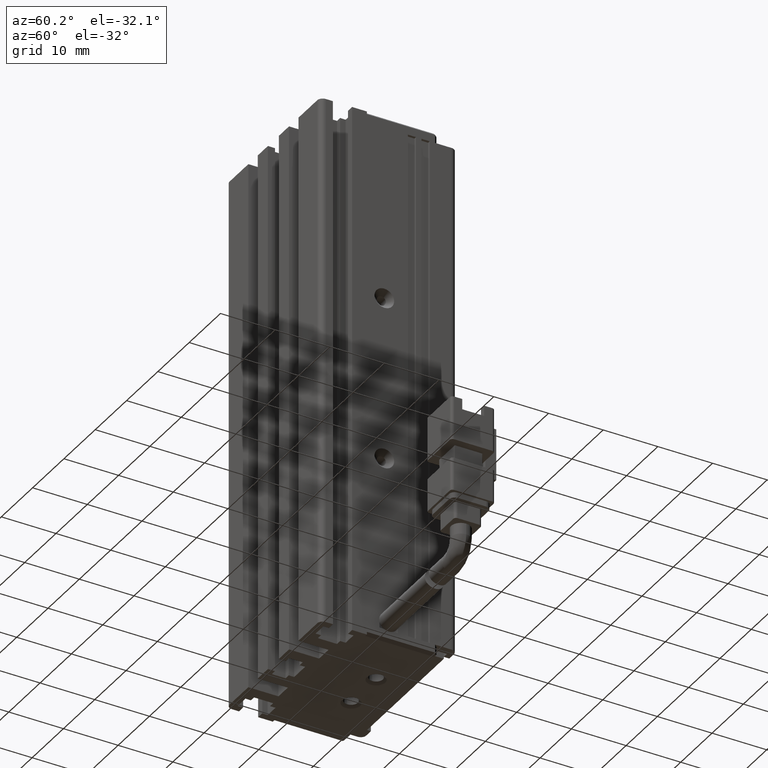
[diagram: clean part render]
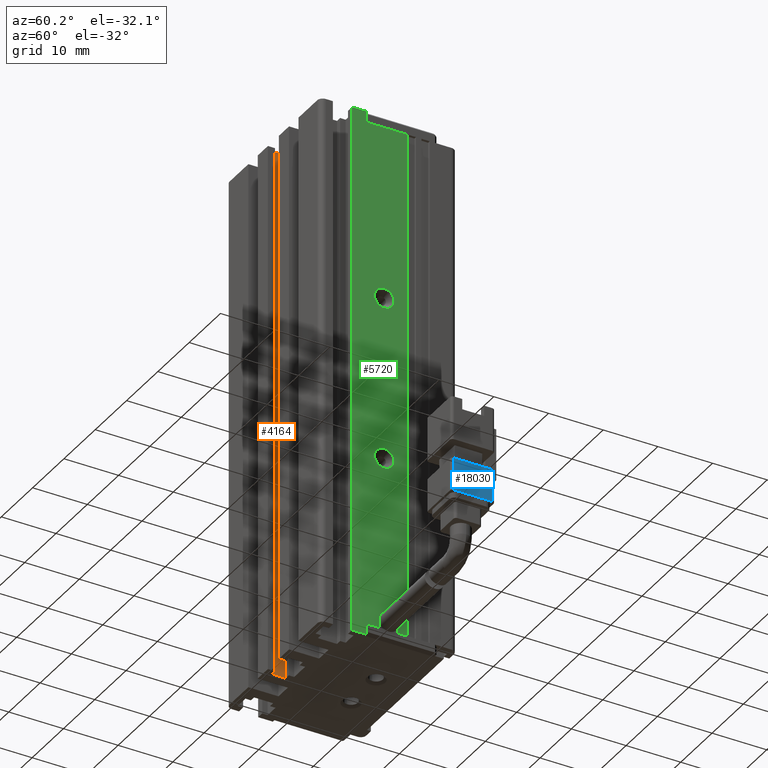
[diagram: same view with three faces highlighted in distinct colors, each labeled with its STEP entity id]
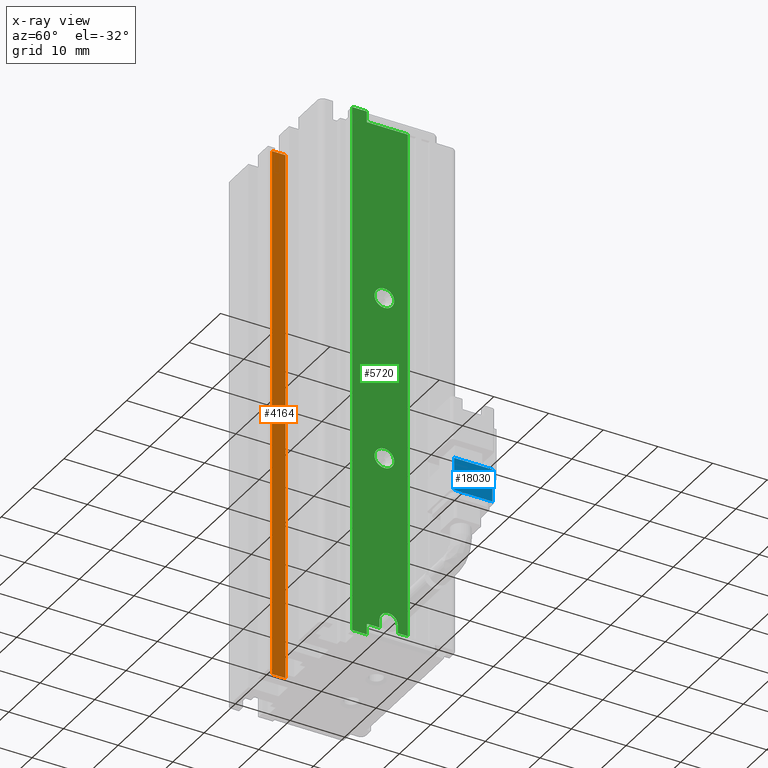
[diagram: x-ray of the same camera — body ghosted, the three highlighted faces saturated]
A machine part, auxiliary view with three faces highlighted in distinct colors.
The next image is the same camera in x-ray (body ghosted, the three faces saturated) — at least one of them is partly hidden behind the body in this view.
Their STEP definitions:

[orange] entity #4164 — the highlighted planar face has unit normal (-1, 0, 0).
#687 = DIRECTION ( 'NONE',  ( -1.000000000000000000, 0.0000000000000000000, 0.0000000000000000000 ) ) ;
#843 = CARTESIAN_POINT ( 'NONE',  ( 38.17537974683542500, 11.99594479660386700, -164.0000000000000000 ) ) ;
#1530 = DIRECTION ( 'NONE',  ( 0.0000000000000000000, 1.000000000000000000, -0.0000000000000000000 ) ) ;
#2877 = EDGE_CURVE ( 'NONE', #10913, #12309, #28975, .T. ) ;
#3447 = LINE ( 'NONE', #8508, #21119 ) ;
#4136 = VECTOR ( 'NONE', #27814, 1000.000000000000000 ) ;
#4164 = ADVANCED_FACE ( 'NONE', ( #13130 ), #5409, .F. ) ;
#4183 = ORIENTED_EDGE ( 'NONE', *, *, #6890, .F. ) ;
#5409 = PLANE ( 'NONE',  #10887 ) ;
#5917 = CARTESIAN_POINT ( 'NONE',  ( 38.17537974683542500, 7.083797468354437600, -164.0000000000000000 ) ) ;
#6098 = DIRECTION ( 'NONE',  ( 0.0000000000000000000, 0.0000000000000000000, 1.000000000000000000 ) ) ;
#6890 = EDGE_CURVE ( 'NONE', #20509, #10913, #12253, .T. ) ;
#8463 = EDGE_LOOP ( 'NONE', ( #25226, #4183, #27035, #19769 ) ) ;
#8508 = CARTESIAN_POINT ( 'NONE',  ( 38.17537974683542500, 11.99594479660386700, -66.00000000000000000 ) ) ;
#10887 = AXIS2_PLACEMENT_3D ( 'NONE', #15034, #687, #17471 ) ;
#10913 = VERTEX_POINT ( 'NONE', #12245 ) ;
#12245 = CARTESIAN_POINT ( 'NONE',  ( 38.17537974683542500, 14.49594479660386900, -66.00000000000000000 ) ) ;
#12253 = LINE ( 'NONE', #18314, #18694 ) ;
#12309 = VERTEX_POINT ( 'NONE', #14815 ) ;
#13130 = FACE_OUTER_BOUND ( 'NONE', #8463, .T. ) ;
#13301 = CARTESIAN_POINT ( 'NONE',  ( 38.17537974683542500, 14.49594479660386900, -66.00000000000000000 ) ) ;
#14815 = CARTESIAN_POINT ( 'NONE',  ( 38.17537974683542500, 14.49594479660386900, -164.0000000000000000 ) ) ;
#15034 = CARTESIAN_POINT ( 'NONE',  ( 38.17537974683542500, 7.083797468354437600, -66.00000000000000000 ) ) ;
#15274 = EDGE_CURVE ( 'NONE', #29157, #20509, #3447, .T. ) ;
#17471 = DIRECTION ( 'NONE',  ( 0.0000000000000000000, 0.0000000000000000000, 1.000000000000000000 ) ) ;
#18314 = CARTESIAN_POINT ( 'NONE',  ( 38.17537974683542500, 7.083797468354437600, -66.00000000000000000 ) ) ;
#18694 = VECTOR ( 'NONE', #1530, 1000.000000000000000 ) ;
#19769 = ORIENTED_EDGE ( 'NONE', *, *, #30988, .T. ) ;
#20235 = DIRECTION ( 'NONE',  ( 0.0000000000000000000, 1.000000000000000000, -0.0000000000000000000 ) ) ;
#20509 = VERTEX_POINT ( 'NONE', #29888 ) ;
#21119 = VECTOR ( 'NONE', #6098, 1000.000000000000000 ) ;
#23471 = LINE ( 'NONE', #5917, #29906 ) ;
#25226 = ORIENTED_EDGE ( 'NONE', *, *, #2877, .F. ) ;
#27035 = ORIENTED_EDGE ( 'NONE', *, *, #15274, .F. ) ;
#27814 = DIRECTION ( 'NONE',  ( -0.0000000000000000000, -0.0000000000000000000, -1.000000000000000000 ) ) ;
#28975 = LINE ( 'NONE', #13301, #4136 ) ;
#29157 = VERTEX_POINT ( 'NONE', #843 ) ;
#29888 = CARTESIAN_POINT ( 'NONE',  ( 38.17537974683542500, 11.99594479660386700, -66.00000000000000000 ) ) ;
#29906 = VECTOR ( 'NONE', #20235, 1000.000000000000000 ) ;
#30988 = EDGE_CURVE ( 'NONE', #29157, #12309, #23471, .T. ) ;

[blue] entity #18030 — the highlighted planar face has unit normal (-1, -0, -0).
#1 = LINE ( 'NONE', #13165, #29737 ) ;
#888 = CARTESIAN_POINT ( 'NONE',  ( 82.92537974683534700, 26.69594479660409900, -151.4500000000000200 ) ) ;
#1915 = EDGE_CURVE ( 'NONE', #8754, #25229, #1, .T. ) ;
#2835 = ORIENTED_EDGE ( 'NONE', *, *, #30645, .F. ) ;
#6219 = ORIENTED_EDGE ( 'NONE', *, *, #24956, .F. ) ;
#6870 = CARTESIAN_POINT ( 'NONE',  ( 82.92537974683534700, 26.69594479660409900, -151.4500000000000200 ) ) ;
#7947 = LINE ( 'NONE', #25254, #20761 ) ;
#8744 = VECTOR ( 'NONE', #17683, 1000.000000000000000 ) ;
#8754 = VERTEX_POINT ( 'NONE', #25823 ) ;
#9106 = ORIENTED_EDGE ( 'NONE', *, *, #9715, .F. ) ;
#9715 = EDGE_CURVE ( 'NONE', #25229, #19551, #7947, .T. ) ;
#11821 = DIRECTION ( 'NONE',  ( -1.000000000000000000, -3.428144012049399300E-015, -8.510478105667503400E-031 ) ) ;
#13100 = DIRECTION ( 'NONE',  ( 1.041348031262155300E-030, -5.551115123125780200E-017, -1.000000000000000000 ) ) ;
#13165 = CARTESIAN_POINT ( 'NONE',  ( 82.92537974683534700, 26.69594479660409900, -145.4500000000000200 ) ) ;
#14082 = CARTESIAN_POINT ( 'NONE',  ( 82.92537974683537500, 19.69594479660410300, -151.4500000000000200 ) ) ;
#15952 = CARTESIAN_POINT ( 'NONE',  ( 82.92537974683534700, 26.69594479660410300, -145.4500000000000200 ) ) ;
#17683 = DIRECTION ( 'NONE',  ( 3.428144012049399300E-015, -1.000000000000000000, 5.551115123125780200E-017 ) ) ;
#18030 = ADVANCED_FACE ( 'NONE', ( #19471 ), #23651, .F. ) ;
#18035 = DIRECTION ( 'NONE',  ( -3.304235192336770000E-015, 1.000000000000000000, -5.551115123125780200E-017 ) ) ;
#19063 = CARTESIAN_POINT ( 'NONE',  ( 82.92537974683537500, 19.69594479660410300, -151.4500000000000200 ) ) ;
#19471 = FACE_OUTER_BOUND ( 'NONE', #29164, .T. ) ;
#19551 = VERTEX_POINT ( 'NONE', #6870 ) ;
#20536 = LINE ( 'NONE', #14082, #26163 ) ;
#20761 = VECTOR ( 'NONE', #13100, 1000.000000000000000 ) ;
#23651 = PLANE ( 'NONE',  #30167 ) ;
#24743 = VERTEX_POINT ( 'NONE', #19063 ) ;
#24956 = EDGE_CURVE ( 'NONE', #19551, #24743, #27217, .T. ) ;
#25229 = VERTEX_POINT ( 'NONE', #15952 ) ;
#25254 = CARTESIAN_POINT ( 'NONE',  ( 82.92537974683534700, 26.69594479660409900, -151.4500000000000200 ) ) ;
#25823 = CARTESIAN_POINT ( 'NONE',  ( 82.92537974683537500, 19.69594479660410300, -145.4500000000000200 ) ) ;
#26163 = VECTOR ( 'NONE', #30987, 1000.000000000000000 ) ;
#26287 = CARTESIAN_POINT ( 'NONE',  ( 82.92537974683534700, 26.69594479660409900, -151.4500000000000200 ) ) ;
#27217 = LINE ( 'NONE', #888, #8744 ) ;
#28716 = DIRECTION ( 'NONE',  ( -3.428144012049399300E-015, 1.000000000000000000, -5.551115123125780200E-017 ) ) ;
#28744 = ORIENTED_EDGE ( 'NONE', *, *, #1915, .F. ) ;
#29164 = EDGE_LOOP ( 'NONE', ( #2835, #6219, #9106, #28744 ) ) ;
#29737 = VECTOR ( 'NONE', #18035, 1000.000000000000000 ) ;
#30167 = AXIS2_PLACEMENT_3D ( 'NONE', #26287, #11821, #28716 ) ;
#30645 = EDGE_CURVE ( 'NONE', #24743, #8754, #20536, .T. ) ;
#30987 = DIRECTION ( 'NONE',  ( -1.041348031262155300E-030, 5.551115123125780200E-017, 1.000000000000000000 ) ) ;

[green] entity #5720 — the highlighted planar face has unit normal (-1, 0, 0).
#344 = VECTOR ( 'NONE', #964, 1000.000000000000000 ) ;
#371 = CARTESIAN_POINT ( 'NONE',  ( 55.92537974683542500, 19.19594479660386500, -66.00000000000000000 ) ) ;
#644 = VERTEX_POINT ( 'NONE', #30651 ) ;
#881 = LINE ( 'NONE', #4266, #12088 ) ;
#896 = ORIENTED_EDGE ( 'NONE', *, *, #6305, .T. ) ;
#964 = DIRECTION ( 'NONE',  ( -1.394554826879015900E-015, -1.000000000000000000, 0.0000000000000000000 ) ) ;
#1001 = CARTESIAN_POINT ( 'NONE',  ( 55.92537974683542500, 19.19594479660386500, -66.00000000000000000 ) ) ;
#1057 = ORIENTED_EDGE ( 'NONE', *, *, #19308, .F. ) ;
#1097 = LINE ( 'NONE', #10382, #344 ) ;
#1115 = CARTESIAN_POINT ( 'NONE',  ( 55.92537974682178300, 22.39594479660386700, -131.7999999999892700 ) ) ;
#1172 = VECTOR ( 'NONE', #26197, 1000.000000000000000 ) ;
#1206 = CARTESIAN_POINT ( 'NONE',  ( 55.92537974683542500, 16.49594479660387200, -164.0000000000000000 ) ) ;
#1238 = CARTESIAN_POINT ( 'NONE',  ( 55.92537974683543900, 26.69594479660386800, -66.00000000000000000 ) ) ;
#1469 = CIRCLE ( 'NONE', #10706, 1.799999999989254600 ) ;
#1586 = CIRCLE ( 'NONE', #28661, 1.799999999989254600 ) ;
#1709 = VERTEX_POINT ( 'NONE', #15757 ) ;
#1868 = CARTESIAN_POINT ( 'NONE',  ( 55.92537974683541100, 7.083797468354417100, -162.0000000000000000 ) ) ;
#1926 = CARTESIAN_POINT ( 'NONE',  ( 55.92537974683541100, 7.083797468354417100, -66.00000000000000000 ) ) ;
#2166 = VERTEX_POINT ( 'NONE', #24569 ) ;
#2231 = ORIENTED_EDGE ( 'NONE', *, *, #9109, .T. ) ;
#2352 = CARTESIAN_POINT ( 'NONE',  ( 55.92537974683539700, 24.84594479660386300, -160.4499999999999900 ) ) ;
#2907 = ORIENTED_EDGE ( 'NONE', *, *, #3911, .F. ) ;
#3660 = LINE ( 'NONE', #12522, #28508 ) ;
#3911 = EDGE_CURVE ( 'NONE', #19330, #644, #16555, .T. ) ;
#3940 = ORIENTED_EDGE ( 'NONE', *, *, #30267, .T. ) ;
#4266 = CARTESIAN_POINT ( 'NONE',  ( 55.92537974683539700, 24.84594479660386700, -162.0000000000000000 ) ) ;
#4272 = DIRECTION ( 'NONE',  ( -1.394554826879015900E-015, -1.000000000000000000, 0.0000000000000000000 ) ) ;
#4298 = VERTEX_POINT ( 'NONE', #1206 ) ;
#4336 = DIRECTION ( 'NONE',  ( -1.394554826879015900E-015, -1.000000000000000000, 0.0000000000000000000 ) ) ;
#4660 = EDGE_CURVE ( 'NONE', #21766, #30742, #1469, .T. ) ;
#4817 = ORIENTED_EDGE ( 'NONE', *, *, #19840, .F. ) ;
#4833 = CARTESIAN_POINT ( 'NONE',  ( 55.92537974683542500, 19.19594479660386500, -68.00000000000000000 ) ) ;
#5239 = CARTESIAN_POINT ( 'NONE',  ( 55.92537974683542500, 21.54594479660386200, -162.0000000000000000 ) ) ;
#5720 = ADVANCED_FACE ( 'NONE', ( #14759, #21223, #27641 ), #18607, .F. ) ;
#6126 = CARTESIAN_POINT ( 'NONE',  ( 55.92537974687862600, 22.39594479660386700, -100.0000000000000000 ) ) ;
#6305 = EDGE_CURVE ( 'NONE', #29508, #1709, #881, .T. ) ;
#6568 = CARTESIAN_POINT ( 'NONE',  ( 55.92537974687862600, 22.39594479660386700, -100.0000000000000000 ) ) ;
#6693 = EDGE_CURVE ( 'NONE', #2166, #30829, #20767, .T. ) ;
#6694 = VERTEX_POINT ( 'NONE', #27106 ) ;
#6713 = EDGE_LOOP ( 'NONE', ( #11829, #19515, #896, #7278, #1057, #25741, #2231, #24913, #4817, #7653, #3940, #12395 ) ) ;
#6727 = EDGE_CURVE ( 'NONE', #30742, #21766, #1586, .T. ) ;
#6791 = LINE ( 'NONE', #20029, #17745 ) ;
#6797 = CARTESIAN_POINT ( 'NONE',  ( 55.92537974683540400, 21.54594479660386200, -162.0000000000000000 ) ) ;
#7278 = ORIENTED_EDGE ( 'NONE', *, *, #29755, .F. ) ;
#7570 = LINE ( 'NONE', #1238, #13201 ) ;
#7653 = ORIENTED_EDGE ( 'NONE', *, *, #16522, .F. ) ;
#7752 = VERTEX_POINT ( 'NONE', #11989 ) ;
#8540 = DIRECTION ( 'NONE',  ( 0.0000000000000000000, 0.0000000000000000000, -1.000000000000000000 ) ) ;
#8986 = DIRECTION ( 'NONE',  ( 0.0000000000000000000, 0.0000000000000000000, -1.000000000000000000 ) ) ;
#9109 = EDGE_CURVE ( 'NONE', #18086, #30829, #26379, .T. ) ;
#9211 = DIRECTION ( 'NONE',  ( -0.0000000000000000000, 1.119176436114067100E-015, 1.000000000000000000 ) ) ;
#10382 = CARTESIAN_POINT ( 'NONE',  ( 55.92537974683541100, 7.083797468354417100, -162.0000000000000000 ) ) ;
#10551 = CIRCLE ( 'NONE', #24066, 1.800000000073395800 ) ;
#10698 = CARTESIAN_POINT ( 'NONE',  ( 55.92537974683543900, 26.69594479660386800, -68.00000000000000000 ) ) ;
#10706 = AXIS2_PLACEMENT_3D ( 'NONE', #28655, #14169, #31078 ) ;
#11041 = DIRECTION ( 'NONE',  ( -1.394554826879015900E-015, -1.000000000000000000, 0.0000000000000000000 ) ) ;
#11235 = EDGE_LOOP ( 'NONE', ( #16171, #14818 ) ) ;
#11734 = CARTESIAN_POINT ( 'NONE',  ( 55.92537974683541100, 7.083797468354417100, -68.00000000000000000 ) ) ;
#11829 = ORIENTED_EDGE ( 'NONE', *, *, #27913, .T. ) ;
#11890 = DIRECTION ( 'NONE',  ( 1.000000000000000000, 5.687617954022316600E-016, -0.0000000000000000000 ) ) ;
#11974 = CARTESIAN_POINT ( 'NONE',  ( 55.92537974682178300, 22.39594479660386700, -128.2000000000107600 ) ) ;
#11989 = CARTESIAN_POINT ( 'NONE',  ( 55.92537974683543200, 19.19594479660386500, -164.0000000000000000 ) ) ;
#12063 = CIRCLE ( 'NONE', #24951, 1.649999999999998600 ) ;
#12088 = VECTOR ( 'NONE', #13869, 1000.000000000000000 ) ;
#12395 = ORIENTED_EDGE ( 'NONE', *, *, #18526, .F. ) ;
#12406 = VERTEX_POINT ( 'NONE', #12681 ) ;
#12522 = CARTESIAN_POINT ( 'NONE',  ( 55.92537974683543200, 19.19594479660386500, -66.00000000000000000 ) ) ;
#12614 = DIRECTION ( 'NONE',  ( 0.0000000000000000000, 1.000000000000000000, -0.0000000000000000000 ) ) ;
#12681 = CARTESIAN_POINT ( 'NONE',  ( 55.92537974683539700, 21.54594479660386200, -160.4500000000000200 ) ) ;
#12689 = DIRECTION ( 'NONE',  ( 0.0000000000000000000, 0.0000000000000000000, 1.000000000000000000 ) ) ;
#12709 = CARTESIAN_POINT ( 'NONE',  ( 55.92537974682178300, 22.39594479660386700, -130.0000000000000000 ) ) ;
#12830 = VECTOR ( 'NONE', #9211, 1000.000000000000000 ) ;
#13201 = VECTOR ( 'NONE', #25303, 1000.000000000000000 ) ;
#13341 = LINE ( 'NONE', #1868, #19796 ) ;
#13596 = LINE ( 'NONE', #6797, #12830 ) ;
#13869 = DIRECTION ( 'NONE',  ( -0.0000000000000000000, 2.238352872228134100E-015, -1.000000000000000000 ) ) ;
#14038 = EDGE_CURVE ( 'NONE', #29508, #12406, #12063, .T. ) ;
#14169 = DIRECTION ( 'NONE',  ( 1.000000000000000000, 0.0000000000000000000, 0.0000000000000000000 ) ) ;
#14759 = FACE_BOUND ( 'NONE', #11235, .T. ) ;
#14818 = ORIENTED_EDGE ( 'NONE', *, *, #6727, .F. ) ;
#14968 = DIRECTION ( 'NONE',  ( -0.0000000000000000000, 0.0000000000000000000, 1.000000000000000000 ) ) ;
#15160 = DIRECTION ( 'NONE',  ( 0.0000000000000000000, 0.0000000000000000000, -1.000000000000000000 ) ) ;
#15363 = DIRECTION ( 'NONE',  ( -0.0000000000000000000, 0.0000000000000000000, 1.000000000000000000 ) ) ;
#15757 = CARTESIAN_POINT ( 'NONE',  ( 55.92537974683541100, 24.84594479660386700, -162.0000000000000000 ) ) ;
#15882 = AXIS2_PLACEMENT_3D ( 'NONE', #6568, #23392, #8986 ) ;
#16017 = LINE ( 'NONE', #22937, #21726 ) ;
#16171 = ORIENTED_EDGE ( 'NONE', *, *, #4660, .F. ) ;
#16522 = EDGE_CURVE ( 'NONE', #7752, #4298, #16017, .T. ) ;
#16555 = CIRCLE ( 'NONE', #15882, 1.800000000073395800 ) ;
#17745 = VECTOR ( 'NONE', #12689, 1000.000000000000000 ) ;
#18086 = VERTEX_POINT ( 'NONE', #4833 ) ;
#18526 = EDGE_CURVE ( 'NONE', #25956, #6694, #13341, .T. ) ;
#18607 = PLANE ( 'NONE',  #21947 ) ;
#18708 = DIRECTION ( 'NONE',  ( -1.000000000000000000, 1.394554826879015900E-015, 0.0000000000000000000 ) ) ;
#19308 = EDGE_CURVE ( 'NONE', #29786, #21694, #7570, .T. ) ;
#19330 = VERTEX_POINT ( 'NONE', #20580 ) ;
#19515 = ORIENTED_EDGE ( 'NONE', *, *, #14038, .F. ) ;
#19796 = VECTOR ( 'NONE', #4272, 1000.000000000000000 ) ;
#19840 = EDGE_CURVE ( 'NONE', #4298, #2166, #6791, .T. ) ;
#20029 = CARTESIAN_POINT ( 'NONE',  ( 55.92537974683542500, 16.49594479660387200, -66.00000000000000000 ) ) ;
#20199 = EDGE_CURVE ( 'NONE', #18086, #29786, #25992, .T. ) ;
#20580 = CARTESIAN_POINT ( 'NONE',  ( 55.92537974687862600, 22.39594479660386700, -98.19999999992660400 ) ) ;
#20767 = LINE ( 'NONE', #29519, #27183 ) ;
#21223 = FACE_OUTER_BOUND ( 'NONE', #6713, .T. ) ;
#21694 = VERTEX_POINT ( 'NONE', #27209 ) ;
#21726 = VECTOR ( 'NONE', #11041, 1000.000000000000000 ) ;
#21766 = VERTEX_POINT ( 'NONE', #1115 ) ;
#21947 = AXIS2_PLACEMENT_3D ( 'NONE', #1926, #18708, #4336 ) ;
#22937 = CARTESIAN_POINT ( 'NONE',  ( 55.92537974683541100, 7.083797468354417100, -164.0000000000000000 ) ) ;
#22948 = DIRECTION ( 'NONE',  ( 1.000000000000000000, 0.0000000000000000000, 0.0000000000000000000 ) ) ;
#23392 = DIRECTION ( 'NONE',  ( 1.000000000000000000, 0.0000000000000000000, 0.0000000000000000000 ) ) ;
#24066 = AXIS2_PLACEMENT_3D ( 'NONE', #6126, #22948, #8540 ) ;
#24569 = CARTESIAN_POINT ( 'NONE',  ( 55.92537974683542500, 16.49594479660387200, -66.00000000000000000 ) ) ;
#24913 = ORIENTED_EDGE ( 'NONE', *, *, #6693, .F. ) ;
#24951 = AXIS2_PLACEMENT_3D ( 'NONE', #26355, #11890, #28788 ) ;
#25303 = DIRECTION ( 'NONE',  ( -0.0000000000000000000, -0.0000000000000000000, -1.000000000000000000 ) ) ;
#25616 = VECTOR ( 'NONE', #15363, 1000.000000000000000 ) ;
#25741 = ORIENTED_EDGE ( 'NONE', *, *, #20199, .F. ) ;
#25956 = VERTEX_POINT ( 'NONE', #5239 ) ;
#25992 = LINE ( 'NONE', #11734, #1172 ) ;
#26197 = DIRECTION ( 'NONE',  ( 1.394554826879015900E-015, 1.000000000000000000, -0.0000000000000000000 ) ) ;
#26355 = CARTESIAN_POINT ( 'NONE',  ( 55.92537974683539700, 23.19594479660386500, -160.4500000000000200 ) ) ;
#26379 = LINE ( 'NONE', #1001, #25616 ) ;
#27106 = CARTESIAN_POINT ( 'NONE',  ( 55.92537974683543200, 19.19594479660386500, -162.0000000000000000 ) ) ;
#27183 = VECTOR ( 'NONE', #12614, 1000.000000000000000 ) ;
#27209 = CARTESIAN_POINT ( 'NONE',  ( 55.92537974683542500, 26.69594479660386800, -162.0000000000000000 ) ) ;
#27641 = FACE_BOUND ( 'NONE', #30116, .T. ) ;
#27913 = EDGE_CURVE ( 'NONE', #25956, #12406, #13596, .T. ) ;
#28299 = EDGE_CURVE ( 'NONE', #644, #19330, #10551, .T. ) ;
#28508 = VECTOR ( 'NONE', #14968, 1000.000000000000000 ) ;
#28655 = CARTESIAN_POINT ( 'NONE',  ( 55.92537974682178300, 22.39594479660386700, -130.0000000000000000 ) ) ;
#28661 = AXIS2_PLACEMENT_3D ( 'NONE', #12709, #29624, #15160 ) ;
#28788 = DIRECTION ( 'NONE',  ( 0.0000000000000000000, 1.000000000000000000, 0.0000000000000000000 ) ) ;
#29508 = VERTEX_POINT ( 'NONE', #2352 ) ;
#29519 = CARTESIAN_POINT ( 'NONE',  ( 55.92537974683542500, 7.083797468354437600, -66.00000000000000000 ) ) ;
#29536 = ORIENTED_EDGE ( 'NONE', *, *, #28299, .F. ) ;
#29624 = DIRECTION ( 'NONE',  ( 1.000000000000000000, 0.0000000000000000000, 0.0000000000000000000 ) ) ;
#29755 = EDGE_CURVE ( 'NONE', #21694, #1709, #1097, .T. ) ;
#29786 = VERTEX_POINT ( 'NONE', #10698 ) ;
#30116 = EDGE_LOOP ( 'NONE', ( #29536, #2907 ) ) ;
#30267 = EDGE_CURVE ( 'NONE', #7752, #6694, #3660, .T. ) ;
#30651 = CARTESIAN_POINT ( 'NONE',  ( 55.92537974687862600, 22.39594479660386700, -101.8000000000734000 ) ) ;
#30742 = VERTEX_POINT ( 'NONE', #11974 ) ;
#30829 = VERTEX_POINT ( 'NONE', #371 ) ;
#31078 = DIRECTION ( 'NONE',  ( 0.0000000000000000000, 0.0000000000000000000, -1.000000000000000000 ) ) ;